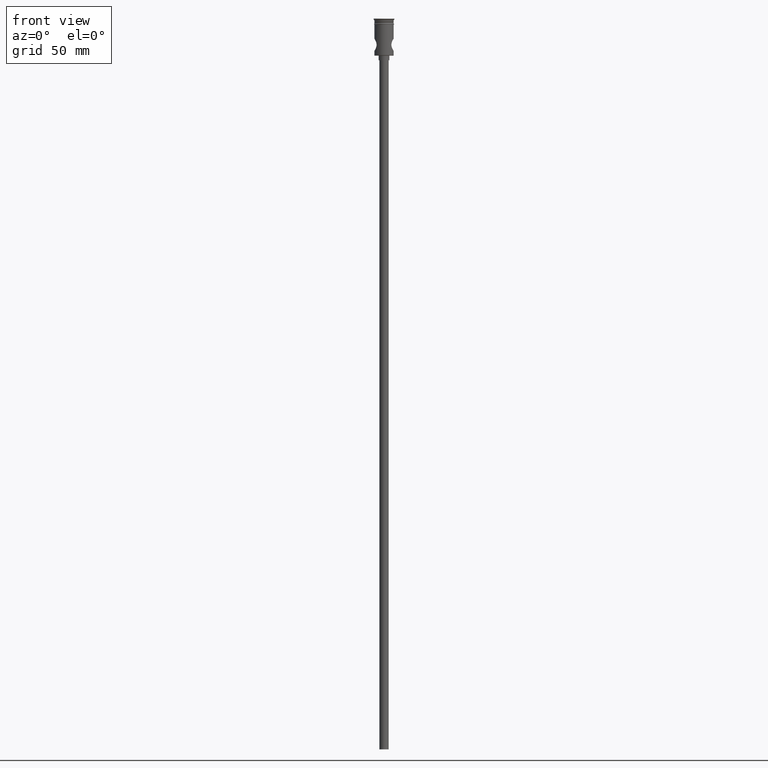
[diagram: clean part render]
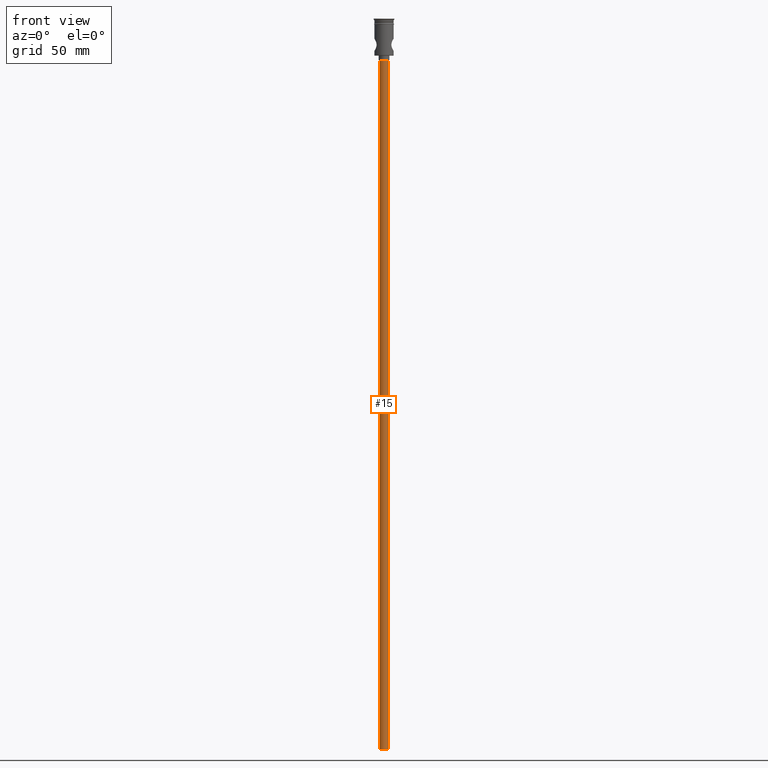
[diagram: same view with one face highlighted and labeled with its STEP entity id]
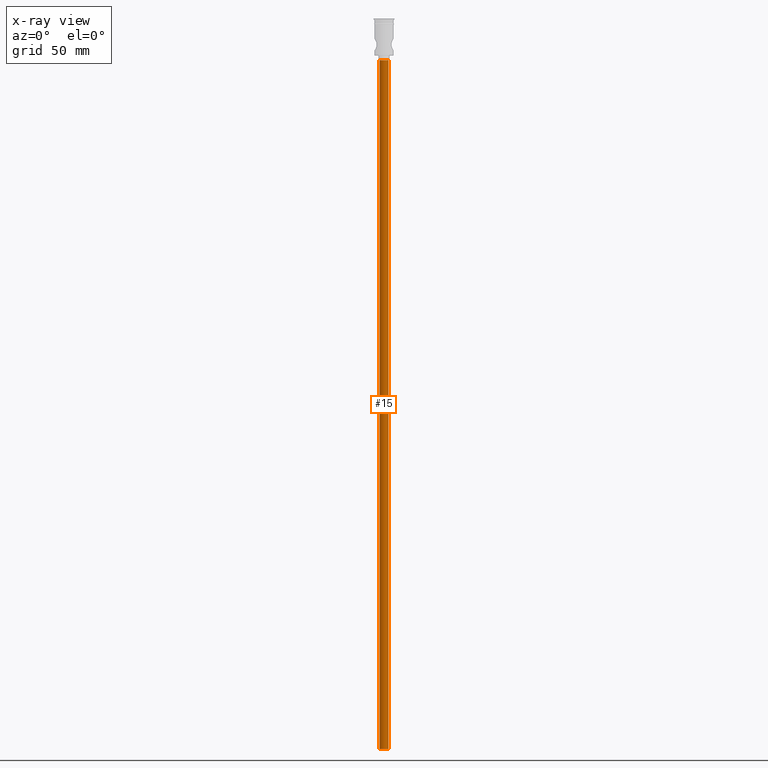
[diagram: x-ray of the same camera — body ghosted, the highlighted face saturated]
A machine part, front view. The second image highlights one B-rep face of the part: STEP entity #15.
The next image is the same camera in x-ray: the body ghosted, the highlighted face saturated — about 0% of this face is hidden behind the body in this view.
In plain terms, the highlighted cylindrical surface (edge-blend (fillet) strip) has radius 3 mm, axis along (-0, -0, 1).
Its self-contained STEP definition (entity closure, byte-faithful):
#2 = CYLINDRICAL_SURFACE ( 'NONE', #675, 3.000000000000000444 ) ;
#8 = ORIENTED_EDGE ( 'NONE', *, *, #559, .T. ) ;
#15 = ADVANCED_FACE ( 'NONE', ( #1124 ), #2, .T. ) ;
#54 = CIRCLE ( 'NONE', #628, 3.000000000000000444 ) ;
#88 = DIRECTION ( 'NONE',  ( 0.000000000000000000, 0.000000000000000000, -1.000000000000000000 ) ) ;
#100 = ORIENTED_EDGE ( 'NONE', *, *, #426, .T. ) ;
#136 = CARTESIAN_POINT ( 'NONE',  ( -3.000000000000000444, 3.673940397442060361E-16, -474.0000000000000568 ) ) ;
#166 = CIRCLE ( 'NONE', #1452, 3.000000000000000444 ) ;
#280 = DIRECTION ( 'NONE',  ( -0.000000000000000000, -0.000000000000000000, 1.000000000000000000 ) ) ;
#324 = CARTESIAN_POINT ( 'NONE',  ( 0.000000000000000000, 0.000000000000000000, -474.0000000000000568 ) ) ;
#374 = DIRECTION ( 'NONE',  ( -1.000000000000000000, 0.000000000000000000, 0.000000000000000000 ) ) ;
#399 = EDGE_CURVE ( 'NONE', #611, #1311, #1261, .T. ) ;
#426 = EDGE_CURVE ( 'NONE', #1321, #496, #1453, .T. ) ;
#439 = VECTOR ( 'NONE', #894, 1000.000000000000000 ) ;
#442 = CARTESIAN_POINT ( 'NONE',  ( 3.000000000000000444, 0.000000000000000000, -474.0000000000000568 ) ) ;
#454 = DIRECTION ( 'NONE',  ( 1.000000000000000000, 0.000000000000000000, 0.000000000000000000 ) ) ;
#461 = CARTESIAN_POINT ( 'NONE',  ( 3.000000000000000444, 0.000000000000000000, -27.00000000000000000 ) ) ;
#496 = VERTEX_POINT ( 'NONE', #461 ) ;
#559 = EDGE_CURVE ( 'NONE', #496, #1311, #54, .T. ) ;
#581 = ORIENTED_EDGE ( 'NONE', *, *, #781, .F. ) ;
#611 = VERTEX_POINT ( 'NONE', #136 ) ;
#628 = AXIS2_PLACEMENT_3D ( 'NONE', #1157, #843, #374 ) ;
#672 = CARTESIAN_POINT ( 'NONE',  ( 3.000000000000000444, 0.000000000000000000, -474.0000000000000568 ) ) ;
#675 = AXIS2_PLACEMENT_3D ( 'NONE', #1366, #693, #454 ) ;
#684 = CARTESIAN_POINT ( 'NONE',  ( -3.000000000000000444, 3.673940397442060361E-16, -27.00000000000000000 ) ) ;
#693 = DIRECTION ( 'NONE',  ( -0.000000000000000000, -0.000000000000000000, 1.000000000000000000 ) ) ;
#781 = EDGE_CURVE ( 'NONE', #1321, #611, #166, .T. ) ;
#843 = DIRECTION ( 'NONE',  ( 0.000000000000000000, 0.000000000000000000, -1.000000000000000000 ) ) ;
#894 = DIRECTION ( 'NONE',  ( -0.000000000000000000, -0.000000000000000000, 1.000000000000000000 ) ) ;
#921 = CARTESIAN_POINT ( 'NONE',  ( -3.000000000000000444, 3.673940397442060361E-16, -474.0000000000000568 ) ) ;
#929 = EDGE_LOOP ( 'NONE', ( #1060, #581, #100, #8 ) ) ;
#1060 = ORIENTED_EDGE ( 'NONE', *, *, #399, .F. ) ;
#1075 = VECTOR ( 'NONE', #280, 1000.000000000000000 ) ;
#1124 = FACE_OUTER_BOUND ( 'NONE', #929, .T. ) ;
#1157 = CARTESIAN_POINT ( 'NONE',  ( 0.000000000000000000, 0.000000000000000000, -27.00000000000000000 ) ) ;
#1261 = LINE ( 'NONE', #921, #439 ) ;
#1311 = VERTEX_POINT ( 'NONE', #684 ) ;
#1321 = VERTEX_POINT ( 'NONE', #672 ) ;
#1366 = CARTESIAN_POINT ( 'NONE',  ( 0.000000000000000000, 0.000000000000000000, -474.0000000000000568 ) ) ;
#1452 = AXIS2_PLACEMENT_3D ( 'NONE', #324, #88, #1456 ) ;
#1453 = LINE ( 'NONE', #442, #1075 ) ;
#1456 = DIRECTION ( 'NONE',  ( -1.000000000000000000, 0.000000000000000000, 0.000000000000000000 ) ) ;